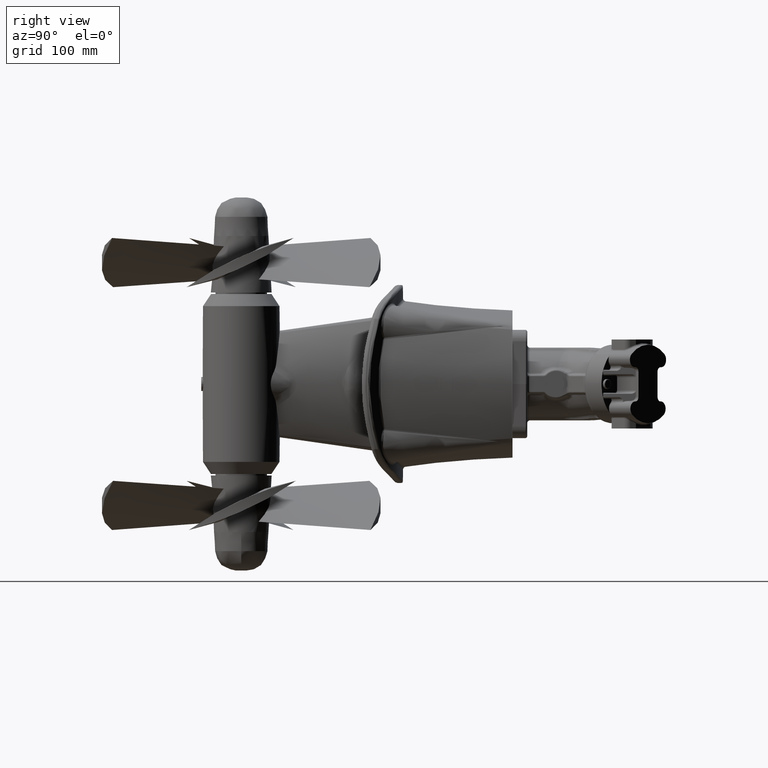
[diagram: clean part render]
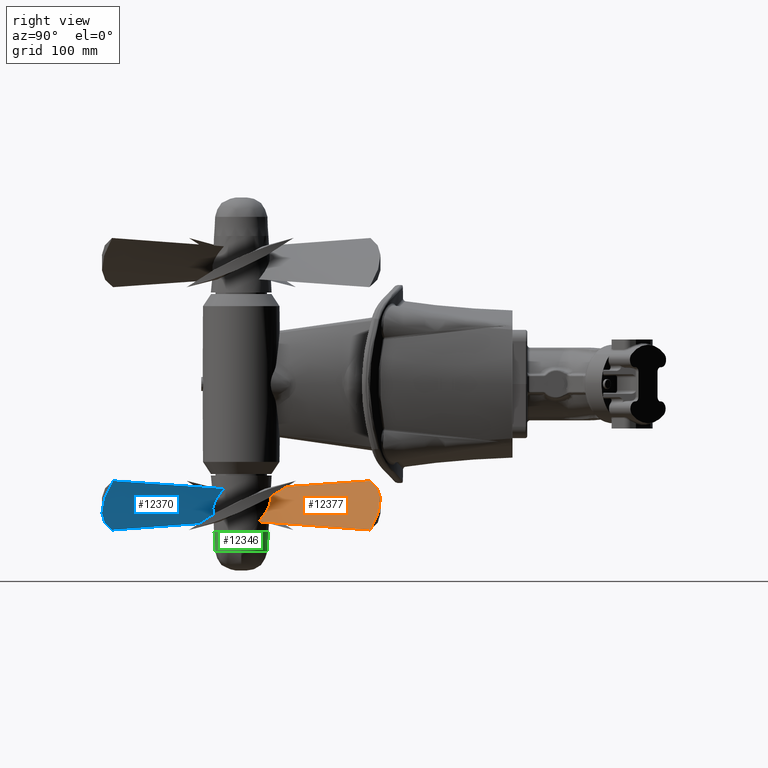
[diagram: same view with three faces highlighted in distinct colors, each labeled with its STEP entity id]
A machine part, right view with three faces highlighted in distinct colors.
Their STEP definitions:

[orange] entity #12377 — the highlighted face is a freeform B-spline surface patch.
#86=B_SPLINE_SURFACE_WITH_KNOTS('',3,3,((#51342,#51343,#51344,#51345),(#51346,
#51347,#51348,#51349),(#51350,#51351,#51352,#51353),(#51354,#51355,#51356,
#51357),(#51358,#51359,#51360,#51361)),.UNSPECIFIED.,.F.,.F.,.F.,(4,1,4),
(4,4),(0.,0.571428571428571,1.),(0.21885541195284,0.944089511445129),
 .UNSPECIFIED.);
#1236=B_SPLINE_CURVE_WITH_KNOTS('',3,(#51280,#51281,#51282,#51283,#51284,
#51285,#51286,#51287,#51288,#51289),.UNSPECIFIED.,.F.,.F.,(4,2,2,2,4),(0.,
3.74981029676478,8.16625706278388,12.274517599686,16.3210813511006),
 .UNSPECIFIED.);
#1238=B_SPLINE_CURVE_WITH_KNOTS('',3,(#51321,#51322,#51323,#51324),
 .UNSPECIFIED.,.F.,.F.,(4,4),(0.21885541195284,0.823709025792352),
 .UNSPECIFIED.);
#1240=B_SPLINE_CURVE_WITH_KNOTS('',3,(#51338,#51339,#51340,#51341),
 .UNSPECIFIED.,.F.,.F.,(4,4),(0.220585843450594,0.81592196059834),
 .UNSPECIFIED.);
#1241=B_SPLINE_CURVE_WITH_KNOTS('',3,(#51362,#51363,#51364,#51365,#51366,
#51367,#51368,#51369,#51370,#51371,#51372,#51373),.UNSPECIFIED.,.F.,.F.,
(4,2,2,2,2,4),(0.,2.22751260300747,4.28558252589106,6.23302692427015,7.4081463452472,
8.57271141560377),.UNSPECIFIED.);
#2920=FACE_OUTER_BOUND('',#3735,.T.);
#3735=EDGE_LOOP('',(#10569,#10570,#10571,#10572));
#5423=VERTEX_POINT('',#51278);
#5424=VERTEX_POINT('',#51279);
#5425=VERTEX_POINT('',#51320);
#5426=VERTEX_POINT('',#51325);
#7153=EDGE_CURVE('',#5423,#5424,#1236,.T.);
#7155=EDGE_CURVE('',#5425,#5423,#1238,.T.);
#7157=EDGE_CURVE('',#5426,#5424,#1240,.T.);
#7158=EDGE_CURVE('',#5425,#5426,#1241,.T.);
#10569=ORIENTED_EDGE('',*,*,#7153,.T.);
#10570=ORIENTED_EDGE('',*,*,#7157,.F.);
#10571=ORIENTED_EDGE('',*,*,#7158,.F.);
#10572=ORIENTED_EDGE('',*,*,#7155,.T.);
#12377=ADVANCED_FACE('',(#2920),#86,.T.);
#51278=CARTESIAN_POINT('',(-443.561795105866,677.850417084178,-196.970445568851));
#51279=CARTESIAN_POINT('',(-587.758460330125,676.538245681495,-130.649670759813));
#51280=CARTESIAN_POINT('Ctrl Pts',(-443.561795105866,677.850417084178,-196.970445568851));
#51281=CARTESIAN_POINT('Ctrl Pts',(-453.082919391403,681.703073735694,-189.847284693102));
#51282=CARTESIAN_POINT('Ctrl Pts',(-463.213207905863,684.890467990232,-183.218184310284));
#51283=CARTESIAN_POINT('Ctrl Pts',(-486.316363118512,689.955281547281,-169.72352433584));
#51284=CARTESIAN_POINT('Ctrl Pts',(-499.403303719419,691.484114149388,-163.066484274026));
#51285=CARTESIAN_POINT('Ctrl Pts',(-525.329235374255,691.655853176103,-151.408658147632));
#51286=CARTESIAN_POINT('Ctrl Pts',(-538.047858778624,690.492396348521,-146.358240787339));
#51287=CARTESIAN_POINT('Ctrl Pts',(-563.261931676613,685.477991741039,-137.522218144444));
#51288=CARTESIAN_POINT('Ctrl Pts',(-575.685364808043,681.68116284489,-133.743734741374));
#51289=CARTESIAN_POINT('Ctrl Pts',(-587.758460330125,676.538245681496,-130.649670759813));
#51320=CARTESIAN_POINT('',(-484.79166290891,526.991610168483,-185.76858752693));
#51321=CARTESIAN_POINT('Ctrl Pts',(-484.79166290891,526.991610168483,-185.76858752693));
#51322=CARTESIAN_POINT('Ctrl Pts',(-474.066180542597,566.280089397319,-188.682623814228));
#51323=CARTESIAN_POINT('Ctrl Pts',(-452.672081231197,644.448195403518,-194.495246463563));
#51324=CARTESIAN_POINT('Ctrl Pts',(-443.561795105866,677.850417084178,-196.970445568851));
#51325=CARTESIAN_POINT('',(-546.272172344547,527.329765235887,-141.165641060086));
#51338=CARTESIAN_POINT('Ctrl Pts',(-546.272172344546,527.329765235887,-141.165641060086));
#51339=CARTESIAN_POINT('Ctrl Pts',(-557.07275816507,566.218319974898,-138.427901791785));
#51340=CARTESIAN_POINT('Ctrl Pts',(-578.323241272688,642.540739471448,-133.0413160046));
#51341=CARTESIAN_POINT('Ctrl Pts',(-587.758460330125,676.538245681495,-130.649670759813));
#51342=CARTESIAN_POINT('Ctrl Pts',(-546.178257304974,526.991610168483,-141.189446703224));
#51343=CARTESIAN_POINT('Ctrl Pts',(-559.261219581649,574.099446183672,-137.873169219229));
#51344=CARTESIAN_POINT('Ctrl Pts',(-587.947800021596,677.102925572657,-130.601676816058));
#51345=CARTESIAN_POINT('Ctrl Pts',(-591.987264843791,691.814934973905,-129.577750739231));
#51346=CARTESIAN_POINT('Ctrl Pts',(-532.470267378422,526.991610168483,-146.482848010836));
#51347=CARTESIAN_POINT('Ctrl Pts',(-540.613909297738,574.099446183672,-143.870174038638));
#51348=CARTESIAN_POINT('Ctrl Pts',(-558.468102165681,677.102925572657,-138.139635791853));
#51349=CARTESIAN_POINT('Ctrl Pts',(-560.98251399092,691.814934973905,-137.332952689099));
#51350=CARTESIAN_POINT('Ctrl Pts',(-509.925207942109,526.991610168483,-159.318610992366));
#51351=CARTESIAN_POINT('Ctrl Pts',(-509.406058038384,574.099446183672,-158.491332758387));
#51352=CARTESIAN_POINT('Ctrl Pts',(-508.268508633379,677.102925572657,-156.677943088072));
#51353=CARTESIAN_POINT('Ctrl Pts',(-508.108217123766,691.814934973905,-156.422514596141));
#51354=CARTESIAN_POINT('Ctrl Pts',(-491.65027122237,526.991610168483,-177.318291540726));
#51355=CARTESIAN_POINT('Ctrl Pts',(-482.481159793306,574.099446183672,-179.362283513664));
#51356=CARTESIAN_POINT('Ctrl Pts',(-462.375902534958,677.102925572657,-183.84431006193));
#51357=CARTESIAN_POINT('Ctrl Pts',(-459.544869143192,691.814934973905,-184.475408241144));
#51358=CARTESIAN_POINT('Ctrl Pts',(-484.79166290891,526.991610168483,-185.76858752693));
#51359=CARTESIAN_POINT('Ctrl Pts',(-471.931550366675,574.099446183672,-189.262587454104));
#51360=CARTESIAN_POINT('Ctrl Pts',(-443.733605198912,677.102925572657,-196.923766004375));
#51361=CARTESIAN_POINT('Ctrl Pts',(-439.762946939319,691.814934973905,-198.002565246939));
#51362=CARTESIAN_POINT('Ctrl Pts',(-484.79166290891,526.991610168483,-185.76858752693));
#51363=CARTESIAN_POINT('Ctrl Pts',(-487.958194555493,531.408316309437,-180.709236477014));
#51364=CARTESIAN_POINT('Ctrl Pts',(-492.161887586408,535.213305175301,-175.866371582593));
#51365=CARTESIAN_POINT('Ctrl Pts',(-501.881793781209,540.539643615025,-166.906098219344));
#51366=CARTESIAN_POINT('Ctrl Pts',(-507.199918160005,542.169554505531,-162.837176834194));
#51367=CARTESIAN_POINT('Ctrl Pts',(-518.235027575108,542.926482712686,-155.47564107783));
#51368=CARTESIAN_POINT('Ctrl Pts',(-523.816447359831,542.172545852901,-152.219352776544));
#51369=CARTESIAN_POINT('Ctrl Pts',(-532.458148294478,538.874607253507,-147.629159064746));
#51370=CARTESIAN_POINT('Ctrl Pts',(-535.597240675201,537.1733455514,-146.067595632655));
#51371=CARTESIAN_POINT('Ctrl Pts',(-541.395719271682,532.862543773983,-143.316603818439));
#51372=CARTESIAN_POINT('Ctrl Pts',(-544.019745780108,530.289933191512,-142.142567992157));
#51373=CARTESIAN_POINT('Ctrl Pts',(-546.272172344547,527.329765235887,-141.165641060086));

[blue] entity #12370 — the highlighted face is a freeform B-spline surface patch.
#80=B_SPLINE_SURFACE_WITH_KNOTS('',3,3,((#51097,#51098,#51099,#51100),(#51101,
#51102,#51103,#51104),(#51105,#51106,#51107,#51108),(#51109,#51110,#51111,
#51112),(#51113,#51114,#51115,#51116)),.UNSPECIFIED.,.F.,.F.,.F.,(4,1,4),
(4,4),(0.,0.571428571428571,1.),(0.21885541195284,0.944592000267786),
 .UNSPECIFIED.);
#1221=B_SPLINE_CURVE_WITH_KNOTS('',3,(#51022,#51023,#51024,#51025,#51026,
#51027,#51028,#51029,#51030,#51031),.UNSPECIFIED.,.F.,.F.,(4,2,2,2,4),(0.,
5.63244865198354,8.16101305955009,11.4348195389717,16.3065733275595),
 .UNSPECIFIED.);
#1227=B_SPLINE_CURVE_WITH_KNOTS('',3,(#51118,#51119,#51120,#51121),
 .UNSPECIFIED.,.F.,.F.,(4,4),(0.21885541195284,0.823709025792353),
 .UNSPECIFIED.);
#1228=B_SPLINE_CURVE_WITH_KNOTS('',3,(#51123,#51124,#51125,#51126,#51127,
#51128,#51129,#51130,#51131,#51132,#51133,#51134),.UNSPECIFIED.,.F.,.F.,
(4,2,2,2,2,4),(0.,2.34270545285157,4.43021699920345,6.38011962370785,7.4530699771868,
8.51715435117828),.UNSPECIFIED.);
#1229=B_SPLINE_CURVE_WITH_KNOTS('',3,(#51135,#51136,#51137,#51138),
 .UNSPECIFIED.,.F.,.F.,(4,4),(0.220585843450594,0.81592196059834),
 .UNSPECIFIED.);
#2913=FACE_OUTER_BOUND('',#3728,.T.);
#3728=EDGE_LOOP('',(#10543,#10544,#10545,#10546));
#5413=VERTEX_POINT('',#51010);
#5414=VERTEX_POINT('',#51011);
#5419=VERTEX_POINT('',#51117);
#5420=VERTEX_POINT('',#51122);
#7138=EDGE_CURVE('',#5414,#5413,#1221,.T.);
#7144=EDGE_CURVE('',#5419,#5413,#1227,.T.);
#7145=EDGE_CURVE('',#5420,#5419,#1228,.T.);
#7146=EDGE_CURVE('',#5420,#5414,#1229,.T.);
#10543=ORIENTED_EDGE('',*,*,#7138,.T.);
#10544=ORIENTED_EDGE('',*,*,#7144,.F.);
#10545=ORIENTED_EDGE('',*,*,#7145,.F.);
#10546=ORIENTED_EDGE('',*,*,#7146,.T.);
#12370=ADVANCED_FACE('',(#2913),#80,.T.);
#51010=CARTESIAN_POINT('',(-584.598672718111,329.304008189482,-196.970445568851));
#51011=CARTESIAN_POINT('',(-440.402007493853,330.616179592164,-130.649670759813));
#51022=CARTESIAN_POINT('Ctrl Pts',(-440.402007493853,330.616179592164,-130.649670759813));
#51023=CARTESIAN_POINT('Ctrl Pts',(-454.702260755673,324.52453409772,-141.180046336547));
#51024=CARTESIAN_POINT('Ctrl Pts',(-470.357678915541,319.968922522374,-150.638354532166));
#51025=CARTESIAN_POINT('Ctrl Pts',(-494.333943683926,316.466424834609,-163.055062980699));
#51026=CARTESIAN_POINT('Ctrl Pts',(-501.917463480364,315.813360253346,-166.706079707737));
#51027=CARTESIAN_POINT('Ctrl Pts',(-519.568059326046,315.393479179018,-174.64195832552));
#51028=CARTESIAN_POINT('Ctrl Pts',(-529.678308562755,315.945770372974,-178.78393922525));
#51029=CARTESIAN_POINT('Ctrl Pts',(-554.916551745099,319.434340333733,-188.221317924601));
#51030=CARTESIAN_POINT('Ctrl Pts',(-569.989716394559,323.392595727706,-193.063539014134));
#51031=CARTESIAN_POINT('Ctrl Pts',(-584.598672718111,329.304008189482,-196.970445568851));
#51097=CARTESIAN_POINT('Ctrl Pts',(-543.368804915067,480.162815105176,-185.76858752693));
#51098=CARTESIAN_POINT('Ctrl Pts',(-556.237827770283,433.022339751774,-189.265008321947));
#51099=CARTESIAN_POINT('Ctrl Pts',(-584.465944687705,329.9087379987,-196.934384319227));
#51100=CARTESIAN_POINT('Ctrl Pts',(-588.40573936194,315.309037224924,-198.004798148006));
#51101=CARTESIAN_POINT('Ctrl Pts',(-529.674200598592,480.162815105176,-180.431725947052));
#51102=CARTESIAN_POINT('Ctrl Pts',(-537.629836499595,433.022339751774,-183.132008678668));
#51103=CARTESIAN_POINT('Ctrl Pts',(-555.078149646755,329.9087379987,-189.057562831008));
#51104=CARTESIAN_POINT('Ctrl Pts',(-557.513732542641,315.309037224924,-189.884242497727));
#51105=CARTESIAN_POINT('Ctrl Pts',(-507.148687579679,480.162815105176,-167.566609974833));
#51106=CARTESIAN_POINT('Ctrl Pts',(-506.478230979744,433.022339751774,-168.419004239229));
#51107=CARTESIAN_POINT('Ctrl Pts',(-505.008480405936,329.9087379987,-170.287913569201));
#51108=CARTESIAN_POINT('Ctrl Pts',(-504.803223070437,315.309037224924,-170.548870319453));
#51109=CARTESIAN_POINT('Ctrl Pts',(-488.857800513608,480.162815105176,-149.610086089764));
#51110=CARTESIAN_POINT('Ctrl Pts',(-479.496361463664,433.022339751774,-147.680420723274));
#51111=CARTESIAN_POINT('Ctrl Pts',(-458.961583256529,329.9087379987,-143.447502083009));
#51112=CARTESIAN_POINT('Ctrl Pts',(-456.095619917502,315.309037224924,-142.856743528961));
#51113=CARTESIAN_POINT('Ctrl Pts',(-481.982210519004,480.162815105176,-141.189446703224));
#51114=CARTESIAN_POINT('Ctrl Pts',(-468.890183524721,433.022339751774,-137.870871488924));
#51115=CARTESIAN_POINT('Ctrl Pts',(-440.172908496269,329.9087379987,-130.591598602206));
#51116=CARTESIAN_POINT('Ctrl Pts',(-436.164842086929,315.309037224924,-129.575631414764));
#51117=CARTESIAN_POINT('',(-543.368804915067,480.162815105176,-185.76858752693));
#51118=CARTESIAN_POINT('Ctrl Pts',(-543.368804915068,480.162815105176,-185.76858752693));
#51119=CARTESIAN_POINT('Ctrl Pts',(-554.094287281381,440.874335876341,-188.682623814228));
#51120=CARTESIAN_POINT('Ctrl Pts',(-575.488386592781,362.706229870141,-194.495246463563));
#51121=CARTESIAN_POINT('Ctrl Pts',(-584.598672718111,329.304008189482,-196.970445568851));
#51122=CARTESIAN_POINT('',(-481.888295479431,479.824660037773,-141.165641060086));
#51123=CARTESIAN_POINT('Ctrl Pts',(-481.888295479431,479.824660037773,-141.165641060086));
#51124=CARTESIAN_POINT('Ctrl Pts',(-485.43329571316,475.539466458431,-146.6475070021));
#51125=CARTESIAN_POINT('Ctrl Pts',(-489.990345366552,471.804115582932,-151.750931325988));
#51126=CARTESIAN_POINT('Ctrl Pts',(-500.303010118147,466.81110961367,-161.002389446744));
#51127=CARTESIAN_POINT('Ctrl Pts',(-505.769726352037,465.379646001886,-165.086473486173));
#51128=CARTESIAN_POINT('Ctrl Pts',(-516.960919166833,465.055733132779,-172.402242790397));
#51129=CARTESIAN_POINT('Ctrl Pts',(-522.540294795111,466.01015023514,-175.602436441935));
#51130=CARTESIAN_POINT('Ctrl Pts',(-530.819953359347,469.507769424051,-179.934095476673));
#51131=CARTESIAN_POINT('Ctrl Pts',(-533.651902355521,471.130892400258,-181.330741869211));
#51132=CARTESIAN_POINT('Ctrl Pts',(-538.900578071845,475.132646781166,-183.805656354585));
#51133=CARTESIAN_POINT('Ctrl Pts',(-541.290750229361,477.482691171199,-184.872413786004));
#51134=CARTESIAN_POINT('Ctrl Pts',(-543.368804915067,480.162815105176,-185.76858752693));
#51135=CARTESIAN_POINT('Ctrl Pts',(-481.888295479431,479.824660037773,-141.165641060086));
#51136=CARTESIAN_POINT('Ctrl Pts',(-471.087709658907,440.936105298762,-138.427901791785));
#51137=CARTESIAN_POINT('Ctrl Pts',(-449.837226551289,364.613685802212,-133.0413160046));
#51138=CARTESIAN_POINT('Ctrl Pts',(-440.402007493853,330.616179592164,-130.649670759813));

[green] entity #12346 — the highlighted conical surface has half-angle 3 deg.
#127=CONICAL_SURFACE('',#13400,35.9250349693993,2.99999999999998);
#1989=FACE_BOUND('',#3695,.T.);
#2889=FACE_OUTER_BOUND('',#3694,.T.);
#3694=EDGE_LOOP('',(#10464));
#3695=EDGE_LOOP('',(#10465,#10466));
#4426=CIRCLE('',#13401,36.7096311171322);
#4427=CIRCLE('',#13402,35.3500699387986);
#4428=CIRCLE('',#13403,35.3500699387986);
#5384=VERTEX_POINT('',#50540);
#5385=VERTEX_POINT('',#50542);
#5386=VERTEX_POINT('',#50543);
#7099=EDGE_CURVE('',#5384,#5384,#4426,.T.);
#7100=EDGE_CURVE('',#5385,#5386,#4427,.T.);
#7101=EDGE_CURVE('',#5386,#5385,#4428,.T.);
#10464=ORIENTED_EDGE('',*,*,#7099,.F.);
#10465=ORIENTED_EDGE('',*,*,#7100,.F.);
#10466=ORIENTED_EDGE('',*,*,#7101,.F.);
#12346=ADVANCED_FACE('',(#2889,#1989),#127,.T.);
#13400=AXIS2_PLACEMENT_3D('',#50539,#15732,#15733);
#13401=AXIS2_PLACEMENT_3D('',#50541,#15734,#15735);
#13402=AXIS2_PLACEMENT_3D('',#50544,#15736,#15737);
#13403=AXIS2_PLACEMENT_3D('',#50545,#15738,#15739);
#15732=DIRECTION('center_axis',(3.33066907387547E-16,2.20361575426352E-16,
1.));
#15733=DIRECTION('ref_axis',(7.19419388376366E-18,1.,-2.20361575426352E-16));
#15734=DIRECTION('center_axis',(3.33066907387547E-16,4.53172307924164E-16,
1.));
#15735=DIRECTION('ref_axis',(7.19419388376358E-18,1.,-4.53172307924164E-16));
#15736=DIRECTION('center_axis',(-3.33066907387547E-16,-2.20361575426352E-16,
-1.));
#15737=DIRECTION('ref_axis',(7.19419388376366E-18,1.,-2.20361575426352E-16));
#15738=DIRECTION('center_axis',(-3.33066907387547E-16,-2.20361575426352E-16,
-1.));
#15739=DIRECTION('ref_axis',(7.19419388376366E-18,1.,-2.20361575426352E-16));
#50539=CARTESIAN_POINT('Origin',(-514.080233911989,503.57721263683,-214.570986339556));
#50540=CARTESIAN_POINT('',(-477.370602794857,503.57721263683,-199.6));
#50541=CARTESIAN_POINT('Origin',(-514.080233911989,503.57721263683,-199.6));
#50542=CARTESIAN_POINT('',(-514.080233911989,538.927282575628,-225.541972679111));
#50543=CARTESIAN_POINT('',(-478.730163973189,503.57721263683,-225.541972679111));
#50544=CARTESIAN_POINT('Origin',(-514.080233911989,503.57721263683,-225.541972679111));
#50545=CARTESIAN_POINT('Origin',(-514.080233911989,503.57721263683,-225.541972679111));